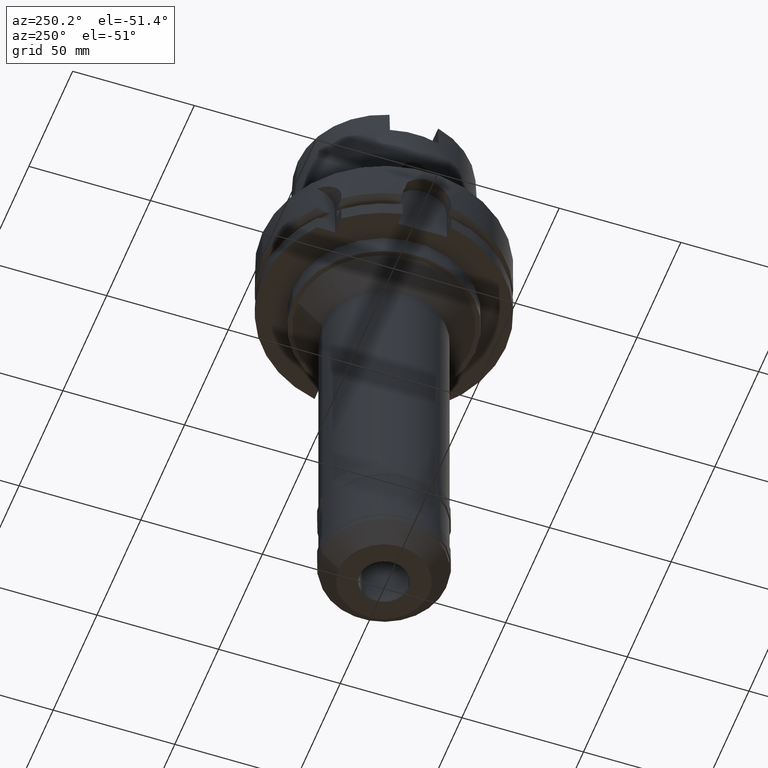
[diagram: clean part render]
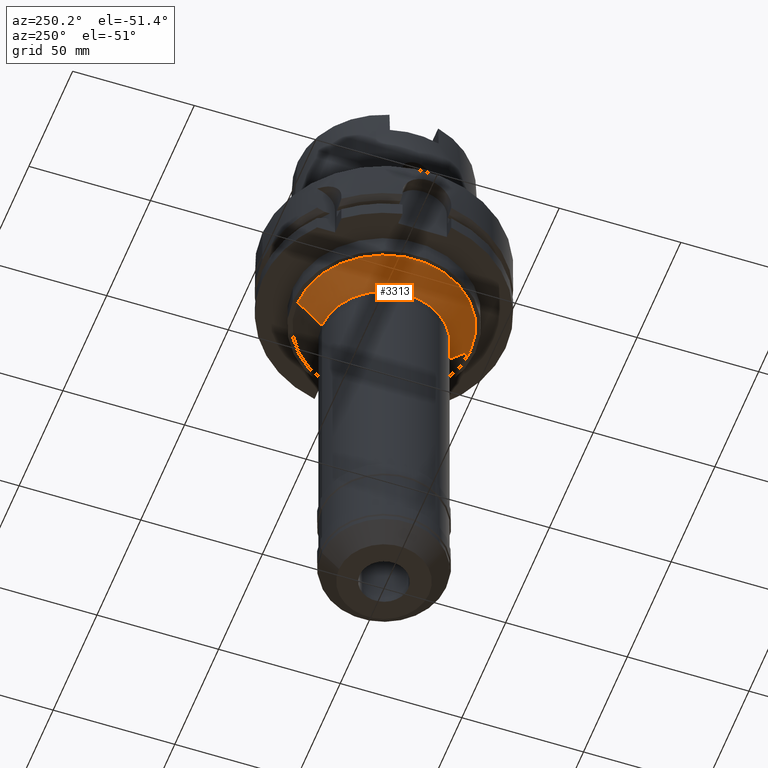
[diagram: same view with one face highlighted and labeled with its STEP entity id]
A machine part, auxiliary view. The second image highlights one B-rep face of the part: STEP entity #3313.
In plain terms, the highlighted conical surface has half-angle 45 deg.
Its self-contained STEP definition (entity closure, byte-faithful):
#1306=CARTESIAN_POINT('',(0.E0,0.E0,-3.7E1));
#1307=DIRECTION('',(0.E0,0.E0,-1.E0));
#1308=DIRECTION('',(0.E0,-1.E0,0.E0));
#1309=AXIS2_PLACEMENT_3D('',#1306,#1307,#1308);
#1322=DIRECTION('',(0.E0,7.071067811865E-1,-7.071067811865E-1));
#1323=VECTOR('',#1322,1.414213562373E1);
#1324=CARTESIAN_POINT('',(0.E0,-3.55E1,-3.7E1));
#1325=LINE('',#1324,#1323);
#1329=CARTESIAN_POINT('',(0.E0,0.E0,-4.7E1));
#1330=DIRECTION('',(0.E0,0.E0,-1.E0));
#1331=DIRECTION('',(0.E0,-1.E0,0.E0));
#1332=AXIS2_PLACEMENT_3D('',#1329,#1330,#1331);
#1337=DIRECTION('',(0.E0,-7.071067811865E-1,-7.071067811865E-1));
#1338=VECTOR('',#1337,1.414213562373E1);
#1339=CARTESIAN_POINT('',(0.E0,3.55E1,-3.7E1));
#1340=LINE('',#1339,#1338);
#2230=CARTESIAN_POINT('',(0.E0,-3.55E1,-3.7E1));
#2231=CARTESIAN_POINT('',(0.E0,3.55E1,-3.7E1));
#2232=VERTEX_POINT('',#2230);
#2233=VERTEX_POINT('',#2231);
#2234=CARTESIAN_POINT('',(0.E0,2.55E1,-4.7E1));
#2235=VERTEX_POINT('',#2234);
#2236=CARTESIAN_POINT('',(0.E0,-2.55E1,-4.7E1));
#2237=VERTEX_POINT('',#2236);
#3299=CARTESIAN_POINT('',(0.E0,0.E0,-4.2E1));
#3300=DIRECTION('',(0.E0,0.E0,1.E0));
#3301=DIRECTION('',(0.E0,1.E0,0.E0));
#3302=AXIS2_PLACEMENT_3D('',#3299,#3300,#3301);
#3303=CONICAL_SURFACE('',#3302,3.05E1,4.5E1);
#3305=ORIENTED_EDGE('',*,*,#3304,.F.);
#3306=ORIENTED_EDGE('',*,*,#3292,.F.);
#3308=ORIENTED_EDGE('',*,*,#3307,.T.);
#3310=ORIENTED_EDGE('',*,*,#3309,.T.);
#3311=EDGE_LOOP('',(#3305,#3306,#3308,#3310));
#3312=FACE_OUTER_BOUND('',#3311,.F.);
#1310=CIRCLE('',#1309,3.55E1);
#1333=CIRCLE('',#1332,2.55E1);
#3292=EDGE_CURVE('',#2232,#2233,#1310,.T.);
#3304=EDGE_CURVE('',#2233,#2235,#1340,.T.);
#3307=EDGE_CURVE('',#2232,#2237,#1325,.T.);
#3309=EDGE_CURVE('',#2237,#2235,#1333,.T.);
#3313=ADVANCED_FACE('',(#3312),#3303,.T.);